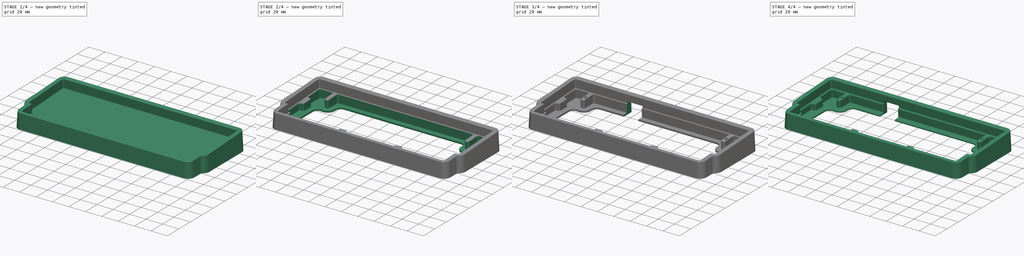
[diagram: build sequence overview — one tinted view per stage of 4, left to right]
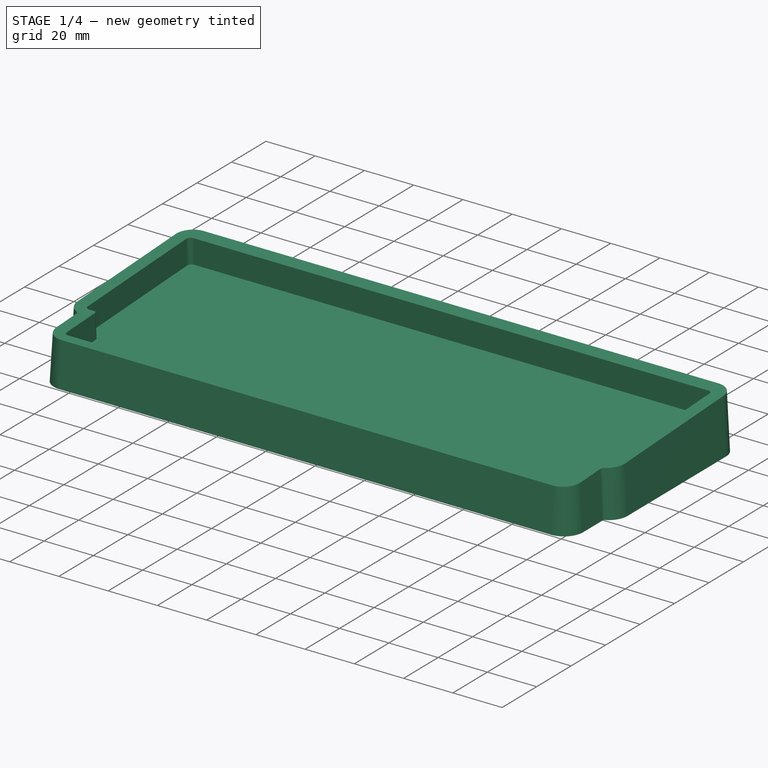
[diagram: stage 1 of 4 — iso view after this stage's code; geometry added in this stage tinted green]
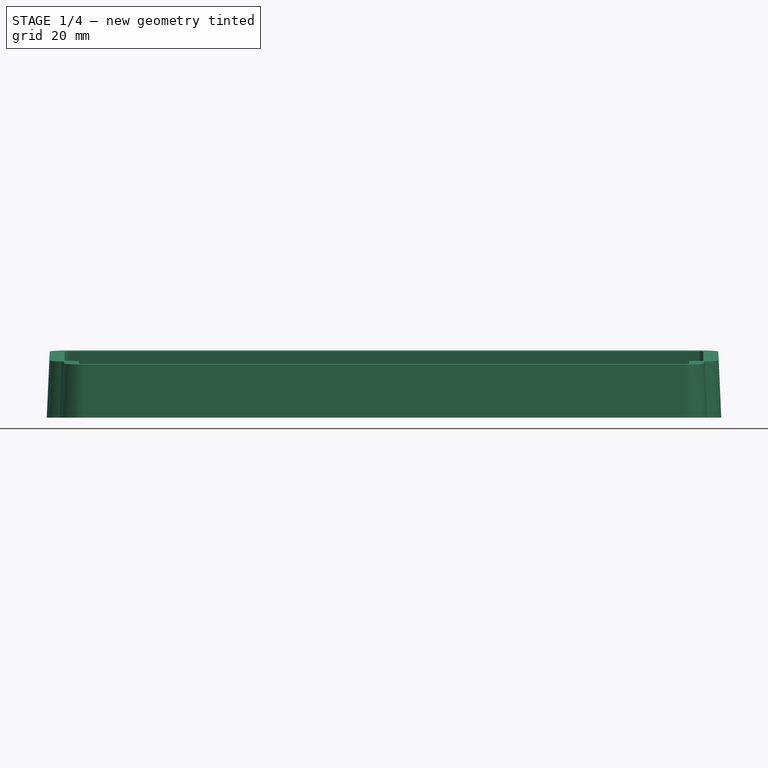
[diagram: stage 1 of 4 — front view after this stage's code; geometry added in this stage tinted green]
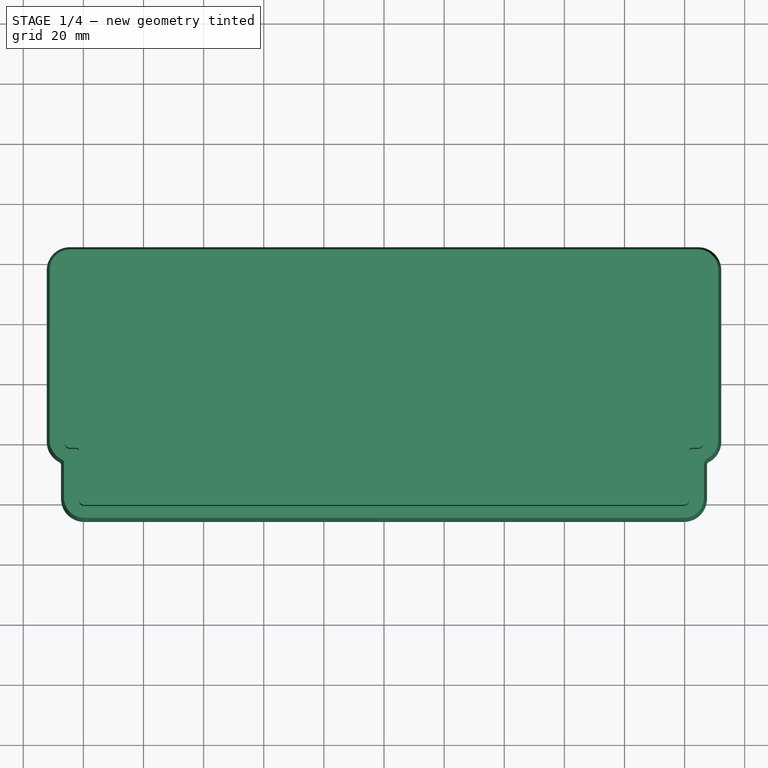
[diagram: stage 1 of 4 — top view after this stage's code; geometry added in this stage tinted green]
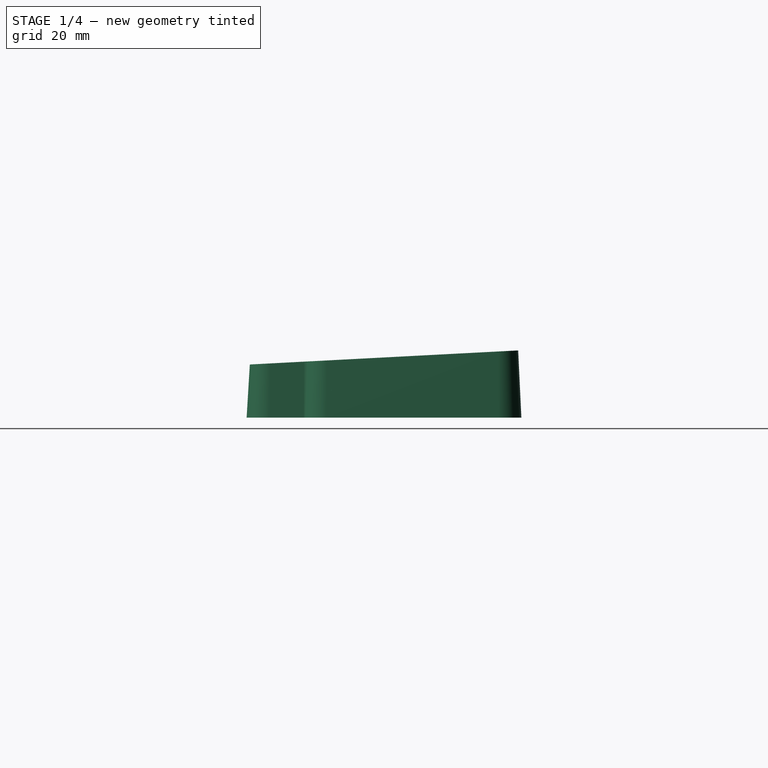
[diagram: stage 1 of 4 — right view after this stage's code; geometry added in this stage tinted green]
FCSTD DOCUMENT  (FreeCAD 0.20R)
Label: case
License: All rights reserved
LicenseURL: http://en.wikipedia.org/wiki/All_rights_reserved
objects: Sketcher::SketchObject×7, PartDesign::Pocket×4, PartDesign::Fillet×2, PartDesign::AdditiveLoft×1, PartDesign::Hole×1, PartDesign::Chamfer×1, PartDesign::Body×1
note: 26 computed .brp shape members not serialized (recipe doc carries the construction recipe); baked Part::Feature solids carry a one-line shape summary decoded from their .brp

FEATURE [Sketcher::SketchObject] Sketch
  FullyConstrained = false
  MapMode = 5
  Support = -> [XY_Plane]
  sketch-geometry (14):
    g0: ArcOfCircle CenterX=108.45 CenterY=-26.7516 CenterZ=0 NormalX=0 NormalY=0 NormalZ=1 AngleXU=0 Radius=1 StartAngle=2.04207 EndAngle=3.14159
    g1: ArcOfCircle CenterX=104.5 CenterY=-19 CenterZ=0 NormalX=0 NormalY=0 NormalZ=1 AngleXU=0 Radius=7.7 StartAngle=5.18366 EndAngle=6.28319
    g2: LineSegment StartX=107.45 StartY=-26.7516 StartZ=0 EndX=107.45 EndY=-38 EndZ=0
    g3: ArcOfCircle CenterX=99.75 CenterY=-38 CenterZ=0 NormalX=0 NormalY=0 NormalZ=1 AngleXU=0 Radius=7.7 StartAngle=4.71239 EndAngle=6.28319
    g4: LineSegment StartX=-99.75 StartY=-45.7 StartZ=0 EndX=99.75 EndY=-45.7 EndZ=0
    g5: LineSegment StartX=112.2 StartY=38 StartZ=0 EndX=112.2 EndY=-19 EndZ=0
    g6: LineSegment StartX=-104.5 StartY=45.7 StartZ=0 EndX=104.5 EndY=45.7 EndZ=0
    g7: ArcOfCircle CenterX=104.5 CenterY=38 CenterZ=0 NormalX=0 NormalY=0 NormalZ=1 AngleXU=0 Radius=7.7 StartAngle=0 EndAngle=1.5708
    g8: LineSegment StartX=-112.2 StartY=38 StartZ=0 EndX=-112.2 EndY=-19 EndZ=0
    g9: ArcOfCircle CenterX=-104.5 CenterY=38 CenterZ=0 NormalX=0 NormalY=0 NormalZ=1 AngleXU=0 Radius=7.7 StartAngle=1.5708 EndAngle=3.14159
    g10: ArcOfCircle CenterX=-104.5 CenterY=-19 CenterZ=0 NormalX=0 NormalY=0 NormalZ=1 AngleXU=0 Radius=7.7 StartAngle=3.14159 EndAngle=4.24111
    g11: LineSegment StartX=-107.45 StartY=-26.7516 StartZ=0 EndX=-107.45 EndY=-38 EndZ=0
    g12: ArcOfCircle CenterX=-108.45 CenterY=-26.7516 CenterZ=0 NormalX=0 NormalY=0 NormalZ=1 AngleXU=0 Radius=1 StartAngle=0 EndAngle=1.09952
    g13: ArcOfCircle CenterX=-99.75 CenterY=-38 CenterZ=0 NormalX=0 NormalY=0 NormalZ=1 AngleXU=0 Radius=7.7 StartAngle=3.14159 EndAngle=4.71239
  constraints (14):
    c: Coincident(g8,g10)
    c: Coincident(g8,g9)
    c: Coincident(g10,g12)
    c: Coincident(g11,g13)
    c: Coincident(g11,g12)
    c: Coincident(g6,g9)
    c: Coincident(g4,g13)
    c: Coincident(g3,g4)
    c: Coincident(g6,g7)
    c: Coincident(g2,g3)
    c: Coincident(g0,g2)
    c: Coincident(g0,g1)
    c: Coincident(g1,g5)
    c: Coincident(g5,g7)
FEATURE [Sketcher::SketchObject] Sketch001
  AttachmentOffset = pos=(0,0,20) rot=(1,0,0;0.05236rad)
  FullyConstrained = false
  MapMode = 5
  Placement = pos=(0,0,20) rot=(1,0,0;0.05236rad)
  Support = -> [XY_Plane]
  sketch-geometry (14):
    g0: ArcOfCircle CenterX=104.5 CenterY=38 CenterZ=0 NormalX=0 NormalY=0 NormalZ=1 AngleXU=0 Radius=6.7 StartAngle=0 EndAngle=1.5708
    g1: LineSegment StartX=111.2 StartY=38 StartZ=0 EndX=111.2 EndY=-19 EndZ=0
    g2: LineSegment StartX=-104.5 StartY=44.7 StartZ=0 EndX=104.5 EndY=44.7 EndZ=0
    g3: ArcOfCircle CenterX=99.75 CenterY=-38 CenterZ=0 NormalX=0 NormalY=0 NormalZ=1 AngleXU=0 Radius=6.7 StartAngle=4.71239 EndAngle=6.28319
    g4: LineSegment StartX=-99.75 StartY=-44.7 StartZ=0 EndX=99.75 EndY=-44.7 EndZ=0
    g5: ArcOfCircle CenterX=-99.75 CenterY=-38 CenterZ=0 NormalX=0 NormalY=0 NormalZ=1 AngleXU=0 Radius=6.7 StartAngle=3.14159 EndAngle=4.71239
    g6: LineSegment StartX=-111.2 StartY=38 StartZ=0 EndX=-111.2 EndY=-19 EndZ=0
    g7: ArcOfCircle CenterX=-104.5 CenterY=38 CenterZ=0 NormalX=0 NormalY=0 NormalZ=1 AngleXU=0 Radius=6.7 StartAngle=1.5708 EndAngle=3.14159
    g8: ArcOfCircle CenterX=-104.5 CenterY=-19 CenterZ=0 NormalX=0 NormalY=0 NormalZ=1 AngleXU=0 Radius=6.7 StartAngle=3.14159 EndAngle=4.24111
    g9: LineSegment StartX=-106.45 StartY=-26.7516 StartZ=0 EndX=-106.45 EndY=-38 EndZ=0
    g10: ArcOfCircle CenterX=-108.45 CenterY=-26.7516 CenterZ=0 NormalX=0 NormalY=0 NormalZ=1 AngleXU=0 Radius=2 StartAngle=0 EndAngle=1.09952
    g11: LineSegment StartX=106.45 StartY=-26.7516 StartZ=0 EndX=106.45 EndY=-38 EndZ=0
    g12: ArcOfCircle CenterX=104.5 CenterY=-19 CenterZ=0 NormalX=0 NormalY=0 NormalZ=1 AngleXU=0 Radius=6.7 StartAngle=5.18366 EndAngle=6.28319
    g13: ArcOfCircle CenterX=108.45 CenterY=-26.7516 CenterZ=0 NormalX=0 NormalY=0 NormalZ=1 AngleXU=0 Radius=2 StartAngle=2.04207 EndAngle=3.14159
  constraints (14):
    c: Coincident(g6,g8)
    c: Coincident(g6,g7)
    c: Coincident(g8,g10)
    c: Coincident(g5,g9)
    c: Coincident(g9,g10)
    c: Coincident(g2,g7)
    c: Coincident(g4,g5)
    c: Coincident(g3,g4)
    c: Coincident(g0,g2)
    c: Coincident(g3,g11)
    c: Coincident(g11,g13)
    c: Coincident(g12,g13)
    c: Coincident(g1,g12)
    c: Coincident(g0,g1)
FEATURE [PartDesign::AdditiveLoft] AdditiveLoft
  Closed = true
  Profile = -> Sketch
  Ruled = true
  Sections = -> [Sketch001]
FEATURE [Sketcher::SketchObject] Sketch002
  FullyConstrained = false
  MapMode = 5
  Placement = pos=(0,-1.04528,19.9452) rot=(1,0,0;0.05236rad)
  Support = -> [AdditiveLoft]
  sketch-geometry (16):
    g0: LineSegment StartX=-104.5 StartY=39.7 StartZ=0 EndX=104.5 EndY=39.7 EndZ=0
    g1: ArcOfCircle CenterX=104.5 CenterY=38 CenterZ=0 NormalX=0 NormalY=0 NormalZ=1 AngleXU=0 Radius=1.7 StartAngle=0 EndAngle=1.5708
    g2: LineSegment StartX=106.2 StartY=38 StartZ=0 EndX=106.2 EndY=-19 EndZ=0
    g3: ArcOfCircle CenterX=104.5 CenterY=-19 CenterZ=0 NormalX=0 NormalY=0 NormalZ=1 AngleXU=0 Radius=1.7 StartAngle=4.71239 EndAngle=6.28319
    g4: ArcOfCircle CenterX=99.75 CenterY=-38 CenterZ=0 NormalX=0 NormalY=0 NormalZ=1 AngleXU=0 Radius=1.7 StartAngle=4.71239 EndAngle=6.28319
    g5: LineSegment StartX=-99.75 StartY=-39.7 StartZ=0 EndX=99.75 EndY=-39.7 EndZ=0
    g6: ArcOfCircle CenterX=-99.75 CenterY=-38 CenterZ=0 NormalX=0 NormalY=0 NormalZ=1 AngleXU=0 Radius=1.7 StartAngle=3.14159 EndAngle=4.71239
    g7: ArcOfCircle CenterX=-104.5 CenterY=-19 CenterZ=0 NormalX=0 NormalY=0 NormalZ=1 AngleXU=0 Radius=1.7 StartAngle=3.14159 EndAngle=4.71239
    g8: LineSegment StartX=-106.2 StartY=38 StartZ=0 EndX=-106.2 EndY=-19 EndZ=0
    g9: ArcOfCircle CenterX=-104.5 CenterY=38 CenterZ=0 NormalX=0 NormalY=0 NormalZ=1 AngleXU=0 Radius=1.7 StartAngle=1.5708 EndAngle=3.14159
    g10: LineSegment StartX=-104.5 StartY=-20.7 StartZ=0 EndX=-102.45 EndY=-20.7 EndZ=0
    g11: LineSegment StartX=-101.45 StartY=-21.7 StartZ=0 EndX=-101.45 EndY=-38 EndZ=0
    g12: ArcOfCircle CenterX=-102.45 CenterY=-21.7 CenterZ=0 NormalX=0 NormalY=0 NormalZ=1 AngleXU=0 Radius=1 StartAngle=0 EndAngle=1.5708
    g13: LineSegment StartX=101.45 StartY=-21.7 StartZ=0 EndX=101.45 EndY=-38 EndZ=0
    g14: LineSegment StartX=102.45 StartY=-20.7 StartZ=0 EndX=104.5 EndY=-20.7 EndZ=0
    g15: ArcOfCircle CenterX=102.45 CenterY=-21.7 CenterZ=0 NormalX=0 NormalY=0 NormalZ=1 AngleXU=0 Radius=1 StartAngle=1.5708 EndAngle=3.14159
  constraints (16):
    c: Coincident(g7,g8)
    c: Coincident(g8,g9)
    c: Coincident(g7,g10)
    c: Coincident(g0,g9)
    c: Coincident(g10,g12)
    c: Coincident(g6,g11)
    c: Coincident(g11,g12)
    c: Coincident(g5,g6)
    c: Coincident(g4,g5)
    c: Coincident(g4,g13)
    c: Coincident(g13,g15)
    c: Coincident(g14,g15)
    c: Coincident(g3,g14)
    c: Coincident(g0,g1)
    c: Coincident(g2,g3)
    c: Coincident(g1,g2)
FEATURE [PartDesign::Pocket] Pocket
  BaseFeature = -> AdditiveLoft
  Direction = (0,0.052336,-0.99863)
  Length = 10
  Length2 = 5
  Profile = -> Sketch002
  ReferenceAxis = -> Sketch002 [N_Axis]
  Type = 0
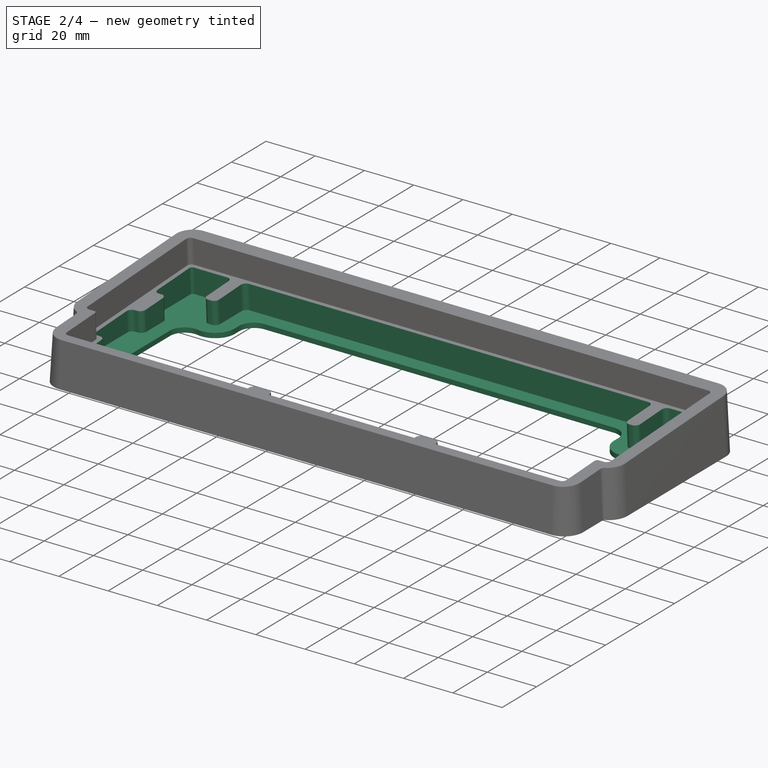
[diagram: stage 2 of 4 — iso view after this stage's code; geometry added in this stage tinted green]
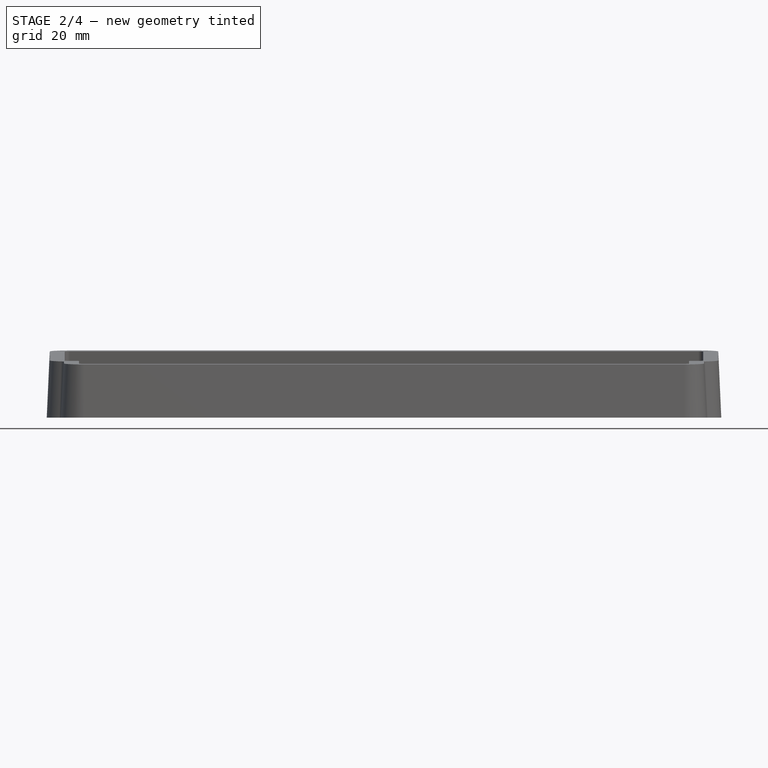
[diagram: stage 2 of 4 — front view after this stage's code; geometry added in this stage tinted green]
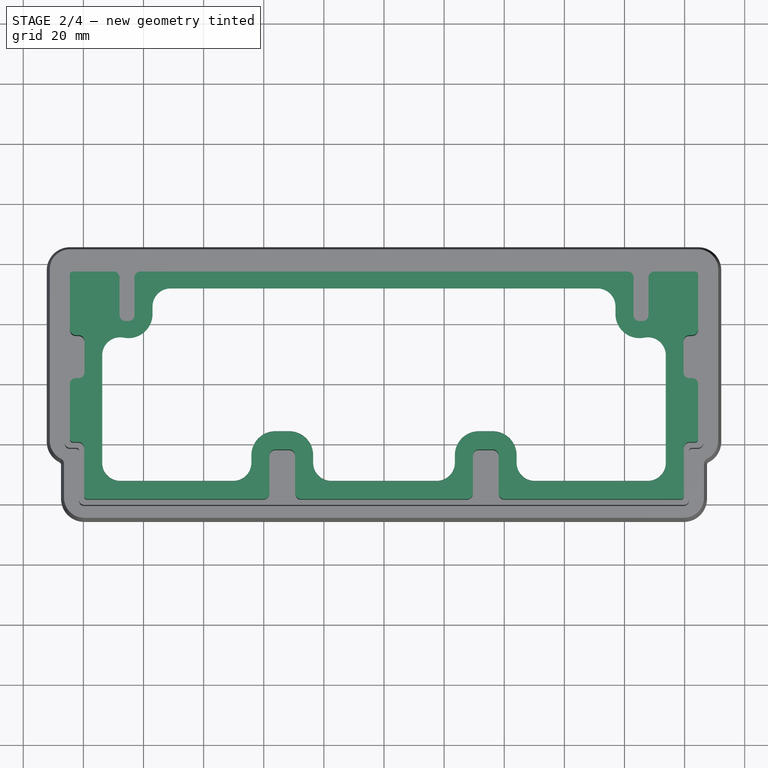
[diagram: stage 2 of 4 — top view after this stage's code; geometry added in this stage tinted green]
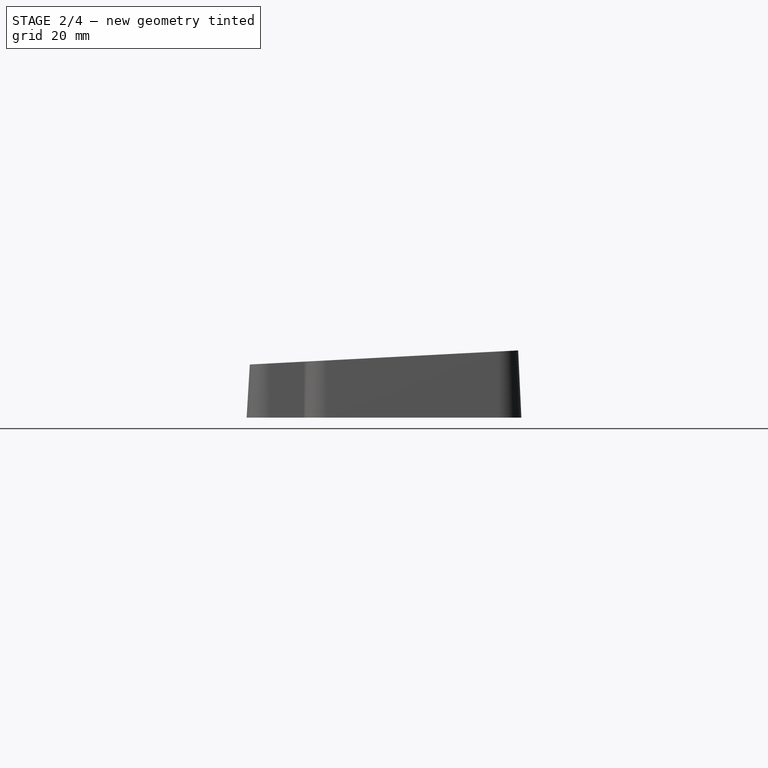
[diagram: stage 2 of 4 — right view after this stage's code; geometry added in this stage tinted green]
FEATURE [Sketcher::SketchObject] Sketch003
  FullyConstrained = false
  MapMode = 5
  Placement = pos=(0,-0.521925,9.95892) rot=(1,0,0;0.05236rad)
  Support = -> [Pocket]
  sketch-geometry (64):
    g0: ArcOfCircle CenterX=-101.75 CenterY=-21 CenterZ=0 NormalX=0 NormalY=0 NormalZ=1 AngleXU=0 Radius=2 StartAngle=0 EndAngle=1.5708
    g1: ArcOfCircle CenterX=101.75 CenterY=-21 CenterZ=0 NormalX=0 NormalY=0 NormalZ=1 AngleXU=0 Radius=2 StartAngle=1.5708 EndAngle=3.14159
    g2: ArcOfCircle CenterX=103.5 CenterY=37 CenterZ=0 NormalX=0 NormalY=0 NormalZ=1 AngleXU=0 Radius=1 StartAngle=0 EndAngle=1.5708
    g3: LineSegment StartX=101.75 StartY=-19 StartZ=0 EndX=103.5 EndY=-19 EndZ=0
    g4: ArcOfCircle CenterX=103.5 CenterY=-18 CenterZ=0 NormalX=0 NormalY=0 NormalZ=1 AngleXU=0 Radius=1 StartAngle=4.71239 EndAngle=6.28319
    g5: LineSegment StartX=99.75 StartY=-21 StartZ=0 EndX=99.75 EndY=-37 EndZ=0
    g6: ArcOfCircle CenterX=98.75 CenterY=-37 CenterZ=0 NormalX=0 NormalY=0 NormalZ=1 AngleXU=0 Radius=1 StartAngle=4.71239 EndAngle=6.28319
    g7: LineSegment StartX=-99.75 StartY=-21 StartZ=0 EndX=-99.75 EndY=-37 EndZ=0
    g8: ArcOfCircle CenterX=-98.75 CenterY=-37 CenterZ=0 NormalX=0 NormalY=0 NormalZ=1 AngleXU=0 Radius=1 StartAngle=3.14159 EndAngle=4.71239
    g9: LineSegment StartX=-103.5 StartY=-19 StartZ=0 EndX=-101.75 EndY=-19 EndZ=0
    g10: ArcOfCircle CenterX=-103.5 CenterY=-18 CenterZ=0 NormalX=0 NormalY=0 NormalZ=1 AngleXU=0 Radius=1 StartAngle=3.14159 EndAngle=4.71239
    g11: ArcOfCircle CenterX=-103.5 CenterY=37 CenterZ=0 NormalX=0 NormalY=0 NormalZ=1 AngleXU=0 Radius=1 StartAngle=1.5708 EndAngle=3.14159
    g12: LineSegment StartX=-103.5 StartY=38 StartZ=0 EndX=-90 EndY=38 EndZ=0
    g13: ArcOfCircle CenterX=-90 CenterY=36 CenterZ=0 NormalX=0 NormalY=0 NormalZ=1 AngleXU=0 Radius=2 StartAngle=0 EndAngle=1.5708
    g14: ArcOfCircle CenterX=-81 CenterY=36 CenterZ=0 NormalX=0 NormalY=0 NormalZ=1 AngleXU=0 Radius=2 StartAngle=1.5708 EndAngle=3.14159
    g15: LineSegment StartX=-88 StartY=23.5 StartZ=0 EndX=-88 EndY=36 EndZ=0
    g16: ArcOfCircle CenterX=-86 CenterY=23.5 CenterZ=0 NormalX=0 NormalY=0 NormalZ=1 AngleXU=0 Radius=2 StartAngle=3.14159 EndAngle=4.71239
    g17: LineSegment StartX=-83 StartY=36 StartZ=0 EndX=-83 EndY=23.5 EndZ=0
    g18: LineSegment StartX=-86 StartY=21.5 StartZ=0 EndX=-85 EndY=21.5 EndZ=0
    g19: ArcOfCircle CenterX=-85 CenterY=23.5 CenterZ=0 NormalX=0 NormalY=0 NormalZ=1 AngleXU=0 Radius=2 StartAngle=4.71239 EndAngle=6.28319
    g20: LineSegment StartX=-81 StartY=38 StartZ=0 EndX=81 EndY=38 EndZ=0
    g21: ArcOfCircle CenterX=81 CenterY=36 CenterZ=0 NormalX=0 NormalY=0 NormalZ=1 AngleXU=0 Radius=2 StartAngle=0 EndAngle=1.5708
    g22: LineSegment StartX=90 StartY=38 StartZ=0 EndX=103.5 EndY=38 EndZ=0
    g23: ArcOfCircle CenterX=90 CenterY=36 CenterZ=0 NormalX=0 NormalY=0 NormalZ=1 AngleXU=0 Radius=2 StartAngle=1.5708 EndAngle=3.14159
    g24: LineSegment StartX=83 StartY=36 StartZ=0 EndX=83 EndY=23.5 EndZ=0
    g25: ArcOfCircle CenterX=85 CenterY=23.5 CenterZ=0 NormalX=0 NormalY=0 NormalZ=1 AngleXU=0 Radius=2 StartAngle=3.14159 EndAngle=4.71239
    g26: LineSegment StartX=88 StartY=23.5 StartZ=0 EndX=88 EndY=36 EndZ=0
    g27: LineSegment StartX=85 StartY=21.5 StartZ=0 EndX=86 EndY=21.5 EndZ=0
    g28: ArcOfCircle CenterX=86 CenterY=23.5 CenterZ=0 NormalX=0 NormalY=0 NormalZ=1 AngleXU=0 Radius=2 StartAngle=4.71239 EndAngle=6.28319
    g29: ArcOfCircle CenterX=31.5625 CenterY=-23.5 CenterZ=0 NormalX=0 NormalY=0 NormalZ=1 AngleXU=0 Radius=2 StartAngle=1.5708 EndAngle=3.14159
    g30: LineSegment StartX=31.5625 StartY=-21.5 StartZ=0 EndX=36.125 EndY=-21.5 EndZ=0
    g31: ArcOfCircle CenterX=36.125 CenterY=-23.5 CenterZ=0 NormalX=0 NormalY=0 NormalZ=1 AngleXU=0 Radius=2 StartAngle=0 EndAngle=1.5708
    g32: LineSegment StartX=29.5625 StartY=-36 StartZ=0 EndX=29.5625 EndY=-23.5 EndZ=0
    g33: ArcOfCircle CenterX=27.5625 CenterY=-36 CenterZ=0 NormalX=0 NormalY=0 NormalZ=1 AngleXU=0 Radius=2 StartAngle=4.71239 EndAngle=6.28319
    g34: LineSegment StartX=38.125 StartY=-36 StartZ=0 EndX=38.125 EndY=-23.5 EndZ=0
    g35: LineSegment StartX=40.125 StartY=-38 StartZ=0 EndX=98.75 EndY=-38 EndZ=0
    g36: ArcOfCircle CenterX=40.125 CenterY=-36 CenterZ=0 NormalX=0 NormalY=0 NormalZ=1 AngleXU=0 Radius=2 StartAngle=3.14159 EndAngle=4.71239
    g37: ArcOfCircle CenterX=-31.5625 CenterY=-23.5 CenterZ=0 NormalX=0 NormalY=0 NormalZ=1 AngleXU=0 Radius=2 StartAngle=0 EndAngle=1.5708
    g38: LineSegment StartX=-31.5625 StartY=-21.5 StartZ=0 EndX=-36.125 EndY=-21.5 EndZ=0
    g39: ArcOfCircle CenterX=-36.125 CenterY=-23.5 CenterZ=0 NormalX=0 NormalY=0 NormalZ=1 AngleXU=0 Radius=2 StartAngle=1.5708 EndAngle=3.14159
    g40: LineSegment StartX=-29.5625 StartY=-36 StartZ=0 EndX=-29.5625 EndY=-23.5 EndZ=0
    g41: ArcOfCircle CenterX=-27.5625 CenterY=-36 CenterZ=0 NormalX=0 NormalY=0 NormalZ=1 AngleXU=0 Radius=2 StartAngle=3.14159 EndAngle=4.71239
    g42: LineSegment StartX=-38.125 StartY=-36 StartZ=0 EndX=-38.125 EndY=-23.5 EndZ=0
    g43: ArcOfCircle CenterX=-40.125 CenterY=-36 CenterZ=0 NormalX=0 NormalY=0 NormalZ=1 AngleXU=0 Radius=2 StartAngle=4.71239 EndAngle=6.28319
    g44: LineSegment StartX=-98.75 StartY=-38 StartZ=0 EndX=-40.125 EndY=-38 EndZ=0
    g45: LineSegment StartX=-27.5625 StartY=-38 StartZ=0 EndX=27.5625 EndY=-38 EndZ=0
    g46: ArcOfCircle CenterX=-101.625 CenterY=14.5 CenterZ=0 NormalX=0 NormalY=0 NormalZ=1 AngleXU=0 Radius=2 StartAngle=0 EndAngle=1.5708
    g47: LineSegment StartX=-102.5 StartY=16.5 StartZ=0 EndX=-101.625 EndY=16.5 EndZ=0
    g48: LineSegment StartX=-104.5 StartY=37 StartZ=0 EndX=-104.5 EndY=18.5 EndZ=0
    g49: ArcOfCircle CenterX=-102.5 CenterY=18.5 CenterZ=0 NormalX=0 NormalY=0 NormalZ=1 AngleXU=0 Radius=2 StartAngle=3.14159 EndAngle=4.71239
    g50: LineSegment StartX=-99.625 StartY=14.5 StartZ=0 EndX=-99.625 EndY=4.5 EndZ=0
    g51: ArcOfCircle CenterX=-101.625 CenterY=4.5 CenterZ=0 NormalX=0 NormalY=0 NormalZ=1 AngleXU=0 Radius=2 StartAngle=4.71239 EndAngle=6.28319
    g52: LineSegment StartX=-102.5 StartY=2.5 StartZ=0 EndX=-101.625 EndY=2.5 EndZ=0
    g53: LineSegment StartX=-104.5 StartY=0.5 StartZ=0 EndX=-104.5 EndY=-18 EndZ=0
    g54: ArcOfCircle CenterX=-102.5 CenterY=0.5 CenterZ=0 NormalX=0 NormalY=0 NormalZ=1 AngleXU=0 Radius=2 StartAngle=1.5708 EndAngle=3.14159
    g55: ArcOfCircle CenterX=101.625 CenterY=14.5 CenterZ=0 NormalX=0 NormalY=0 NormalZ=1 AngleXU=0 Radius=2 StartAngle=1.5708 EndAngle=3.14159
    g56: LineSegment StartX=102.5 StartY=16.5 StartZ=0 EndX=101.625 EndY=16.5 EndZ=0
    g57: ArcOfCircle CenterX=102.5 CenterY=18.5 CenterZ=0 NormalX=0 NormalY=0 NormalZ=1 AngleXU=0 Radius=2 StartAngle=4.71239 EndAngle=6.28319
    g58: LineSegment StartX=99.625 StartY=14.5 StartZ=0 EndX=99.625 EndY=4.5 EndZ=0
    g59: ArcOfCircle CenterX=101.625 CenterY=4.5 CenterZ=0 NormalX=0 NormalY=0 NormalZ=1 AngleXU=0 Radius=2 StartAngle=3.14159 EndAngle=4.71239
    g60: LineSegment StartX=102.5 StartY=2.5 StartZ=0 EndX=101.625 EndY=2.5 EndZ=0
    g61: LineSegment StartX=104.5 StartY=0.5 StartZ=0 EndX=104.5 EndY=-18 EndZ=0
    g62: ArcOfCircle CenterX=102.5 CenterY=0.5 CenterZ=0 NormalX=0 NormalY=0 NormalZ=1 AngleXU=0 Radius=2 StartAngle=0 EndAngle=1.5708
    g63: LineSegment StartX=104.5 StartY=37 StartZ=0 EndX=104.5 EndY=18.5 EndZ=0
  constraints (64):
    c: Coincident(g10,g53)
    c: Coincident(g53,g54)
    c: Coincident(g48,g49)
    c: Coincident(g11,g48)
    c: Coincident(g9,g10)
    c: Coincident(g11,g12)
    c: Coincident(g52,g54)
    c: Coincident(g47,g49)
    c: Coincident(g0,g9)
    c: Coincident(g51,g52)
    c: Coincident(g46,g47)
    c: Coincident(g7,g8)
    c: Coincident(g0,g7)
    c: Coincident(g50,g51)
    c: Coincident(g46,g50)
    c: Coincident(g8,g44)
    c: Coincident(g12,g13)
    c: Coincident(g15,g16)
    c: Coincident(g13,g15)
    c: Coincident(g16,g18)
    c: Coincident(g18,g19)
    c: Coincident(g17,g19)
    c: Coincident(g14,g17)
    c: Coincident(g14,g20)
    c: Coincident(g43,g44)
    c: Coincident(g42,g43)
    c: Coincident(g39,g42)
    c: Coincident(g38,g39)
    c: Coincident(g37,g38)
    c: Coincident(g40,g41)
    c: Coincident(g37,g40)
    c: Coincident(g41,g45)
    c: Coincident(g33,g45)
    c: Coincident(g32,g33)
    c: Coincident(g29,g32)
    c: Coincident(g29,g30)
    c: Coincident(g30,g31)
    c: Coincident(g34,g36)
    c: Coincident(g31,g34)
    c: Coincident(g35,g36)
    c: Coincident(g20,g21)
    c: Coincident(g24,g25)
    c: Coincident(g21,g24)
    c: Coincident(g25,g27)
    c: Coincident(g27,g28)
    c: Coincident(g26,g28)
    c: Coincident(g23,g26)
    c: Coincident(g22,g23)
    c: Coincident(g6,g35)
    c: Coincident(g58,g59)
    c: Coincident(g55,g58)
    c: Coincident(g5,g6)
    c: Coincident(g1,g5)
    c: Coincident(g59,g60)
    c: Coincident(g55,g56)
    c: Coincident(g1,g3)
    c: Coincident(g60,g62)
    c: Coincident(g56,g57)
    c: Coincident(g3,g4)
    c: Coincident(g2,g22)
    c: Coincident(g4,g61)
    c: Coincident(g61,g62)
    c: Coincident(g57,g63)
    c: Coincident(g2,g63)
FEATURE [PartDesign::Pocket] Pocket001
  BaseFeature = -> Pocket
  Direction = (0,0.052336,-0.99863)
  Length = 0
  Length2 = 5
  Offset = -2
  Profile = -> Sketch003
  ReferenceAxis = -> Sketch003 [N_Axis]
  Type = 3
  UpToFace = -> Pocket [Face1]
FEATURE [Sketcher::SketchObject] Sketch004
  FullyConstrained = false
  MapMode = 5
  Placement = pos=(0,-0.521925,9.95892) rot=(1,0,0;0.05236rad)
  Support = -> [Pocket]
  sketch-geometry (30):
    g0: ArcOfCircle CenterX=-31.5625 CenterY=-23.5 CenterZ=0 NormalX=0 NormalY=0 NormalZ=1 AngleXU=0 Radius=8 StartAngle=0 EndAngle=1.5708
    g1: LineSegment StartX=-31.5625 StartY=-15.5 StartZ=0 EndX=-36.125 EndY=-15.5 EndZ=0
    g2: ArcOfCircle CenterX=-36.125 CenterY=-23.5 CenterZ=0 NormalX=0 NormalY=0 NormalZ=1 AngleXU=0 Radius=8 StartAngle=1.5708 EndAngle=3.14159
    g3: ArcOfCircle CenterX=36.125 CenterY=-23.5 CenterZ=0 NormalX=0 NormalY=0 NormalZ=1 AngleXU=0 Radius=8 StartAngle=0 EndAngle=1.5708
    g4: LineSegment StartX=31.5625 StartY=-15.5 StartZ=0 EndX=36.125 EndY=-15.5 EndZ=0
    g5: ArcOfCircle CenterX=31.5625 CenterY=-23.5 CenterZ=0 NormalX=0 NormalY=0 NormalZ=1 AngleXU=0 Radius=8 StartAngle=1.5708 EndAngle=3.14159
    g6: ArcOfCircle CenterX=-85 CenterY=23.5 CenterZ=0 NormalX=0 NormalY=0 NormalZ=1 AngleXU=0 Radius=8 StartAngle=4.51467 EndAngle=6.28319
    g7: ArcOfCircle CenterX=-87.75 CenterY=9.77275 CenterZ=0 NormalX=0 NormalY=0 NormalZ=1 AngleXU=0 Radius=6 StartAngle=1.37308 EndAngle=3.14159
    g8: LineSegment StartX=-77 StartY=26 StartZ=0 EndX=-77 EndY=23.5 EndZ=0
    g9: ArcOfCircle CenterX=-71 CenterY=26 CenterZ=0 NormalX=0 NormalY=0 NormalZ=1 AngleXU=0 Radius=6 StartAngle=1.5708 EndAngle=3.14159
    g10: LineSegment StartX=-93.75 StartY=9.77275 StartZ=0 EndX=-93.75 EndY=-26 EndZ=0
    g11: ArcOfCircle CenterX=-87.75 CenterY=-26 CenterZ=0 NormalX=0 NormalY=0 NormalZ=1 AngleXU=0 Radius=6 StartAngle=3.14159 EndAngle=4.71239
    g12: LineSegment StartX=-87.75 StartY=-32 StartZ=0 EndX=-50.125 EndY=-32 EndZ=0
    g13: LineSegment StartX=-44.125 StartY=-26 StartZ=0 EndX=-44.125 EndY=-23.5 EndZ=0
    g14: ArcOfCircle CenterX=-50.125 CenterY=-26 CenterZ=0 NormalX=0 NormalY=0 NormalZ=1 AngleXU=0 Radius=6 StartAngle=4.71239 EndAngle=6.28319
    g15: LineSegment StartX=-23.5625 StartY=-26 StartZ=0 EndX=-23.5625 EndY=-23.5 EndZ=0
    g16: ArcOfCircle CenterX=-17.5625 CenterY=-26 CenterZ=0 NormalX=0 NormalY=0 NormalZ=1 AngleXU=0 Radius=6 StartAngle=3.14159 EndAngle=4.71239
    g17: LineSegment StartX=-17.5625 StartY=-32 StartZ=0 EndX=17.5625 EndY=-32 EndZ=0
    g18: LineSegment StartX=23.5625 StartY=-26 StartZ=0 EndX=23.5625 EndY=-23.5 EndZ=0
    g19: ArcOfCircle CenterX=17.5625 CenterY=-26 CenterZ=0 NormalX=0 NormalY=0 NormalZ=1 AngleXU=0 Radius=6 StartAngle=4.71239 EndAngle=6.28319
    g20: LineSegment StartX=44.125 StartY=-26 StartZ=0 EndX=44.125 EndY=-23.5 EndZ=0
    g21: ArcOfCircle CenterX=50.125 CenterY=-26 CenterZ=0 NormalX=0 NormalY=0 NormalZ=1 AngleXU=0 Radius=6 StartAngle=3.14159 EndAngle=4.71239
    g22: ArcOfCircle CenterX=85 CenterY=23.5 CenterZ=0 NormalX=0 NormalY=0 NormalZ=1 AngleXU=0 Radius=8 StartAngle=3.14159 EndAngle=4.9101
    g23: ArcOfCircle CenterX=87.75 CenterY=9.77275 CenterZ=0 NormalX=0 NormalY=0 NormalZ=1 AngleXU=0 Radius=6 StartAngle=0 EndAngle=1.76851
    g24: LineSegment StartX=93.75 StartY=-26 StartZ=0 EndX=93.75 EndY=9.77275 EndZ=0
    g25: LineSegment StartX=50.125 StartY=-32 StartZ=0 EndX=87.75 EndY=-32 EndZ=0
    g26: ArcOfCircle CenterX=87.75 CenterY=-26 CenterZ=0 NormalX=0 NormalY=0 NormalZ=1 AngleXU=0 Radius=6 StartAngle=4.71239 EndAngle=6.28319
    g27: LineSegment StartX=-71 StartY=32 StartZ=0 EndX=71 EndY=32 EndZ=0
    g28: LineSegment StartX=77 StartY=26 StartZ=0 EndX=77 EndY=23.5 EndZ=0
    g29: ArcOfCircle CenterX=71 CenterY=26 CenterZ=0 NormalX=0 NormalY=0 NormalZ=1 AngleXU=0 Radius=6 StartAngle=0 EndAngle=1.5708
  constraints (30):
    c: Coincident(g10,g11)
    c: Coincident(g7,g10)
    c: Coincident(g11,g12)
    c: Coincident(g6,g7)
    c: Coincident(g6,g8)
    c: Coincident(g8,g9)
    c: Coincident(g9,g27)
    c: Coincident(g12,g14)
    c: Coincident(g13,g14)
    c: Coincident(g2,g13)
    c: Coincident(g1,g2)
    c: Coincident(g0,g1)
    c: Coincident(g15,g16)
    c: Coincident(g0,g15)
    c: Coincident(g16,g17)
    c: Coincident(g17,g19)
    c: Coincident(g18,g19)
    c: Coincident(g5,g18)
    c: Coincident(g4,g5)
    c: Coincident(g3,g4)
    c: Coincident(g20,g21)
    c: Coincident(g3,g20)
    c: Coincident(g21,g25)
    c: Coincident(g27,g29)
    c: Coincident(g22,g28)
    c: Coincident(g28,g29)
    c: Coincident(g22,g23)
    c: Coincident(g25,g26)
    c: Coincident(g24,g26)
    c: Coincident(g23,g24)
FEATURE [PartDesign::Pocket] Pocket002
  BaseFeature = -> Pocket001
  Direction = (0,0.052336,-0.99863)
  Length = 5
  Length2 = 5
  Profile = -> Sketch004
  ReferenceAxis = -> Sketch004 [N_Axis]
  Type = 1
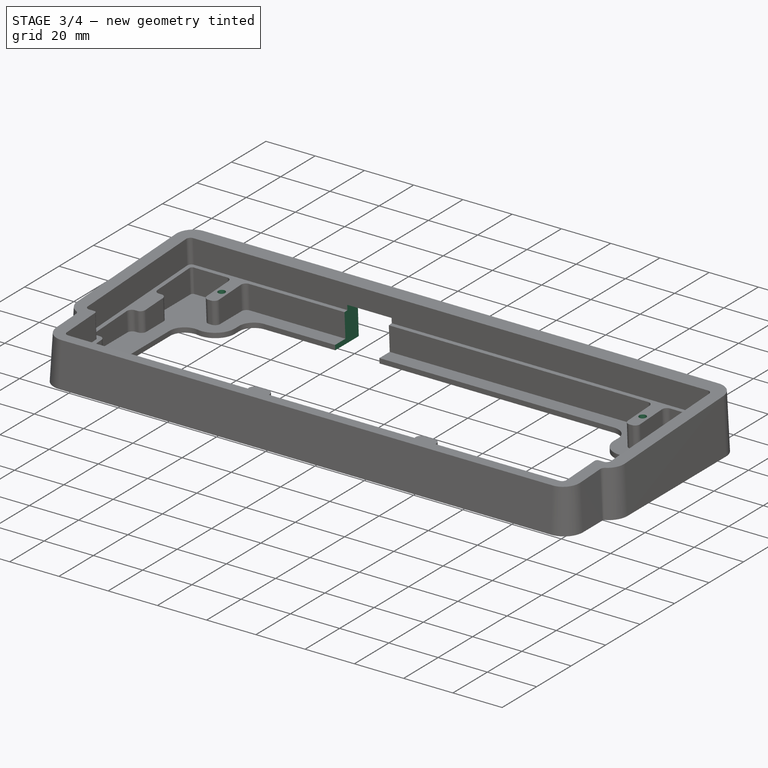
[diagram: stage 3 of 4 — iso view after this stage's code; geometry added in this stage tinted green]
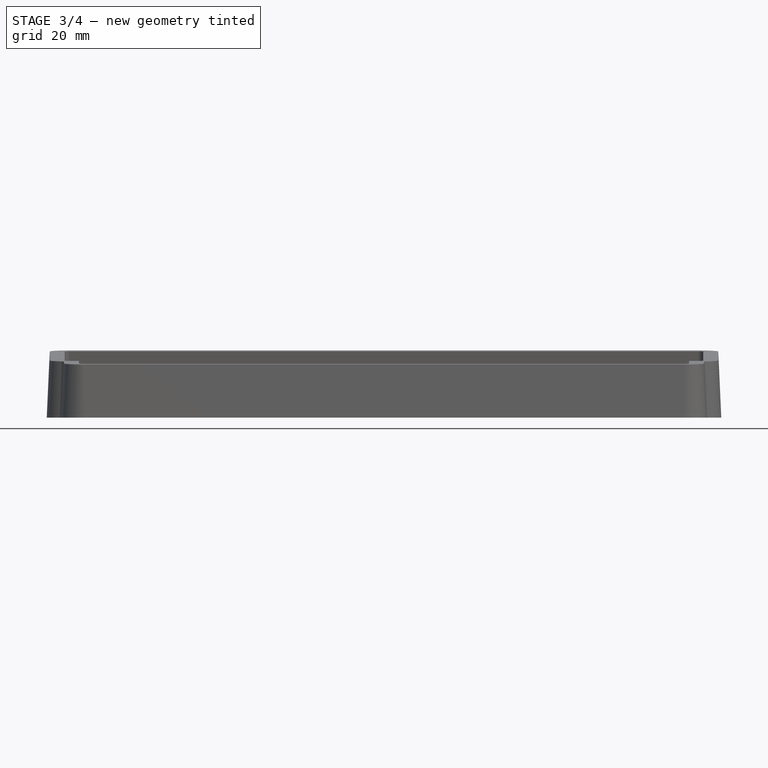
[diagram: stage 3 of 4 — front view after this stage's code; geometry added in this stage tinted green]
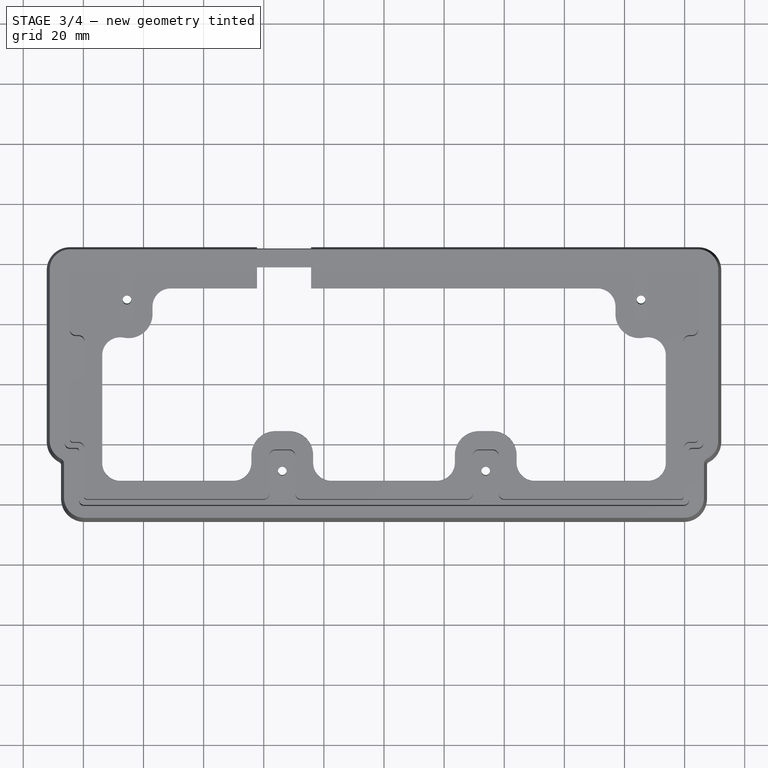
[diagram: stage 3 of 4 — top view after this stage's code; geometry added in this stage tinted green]
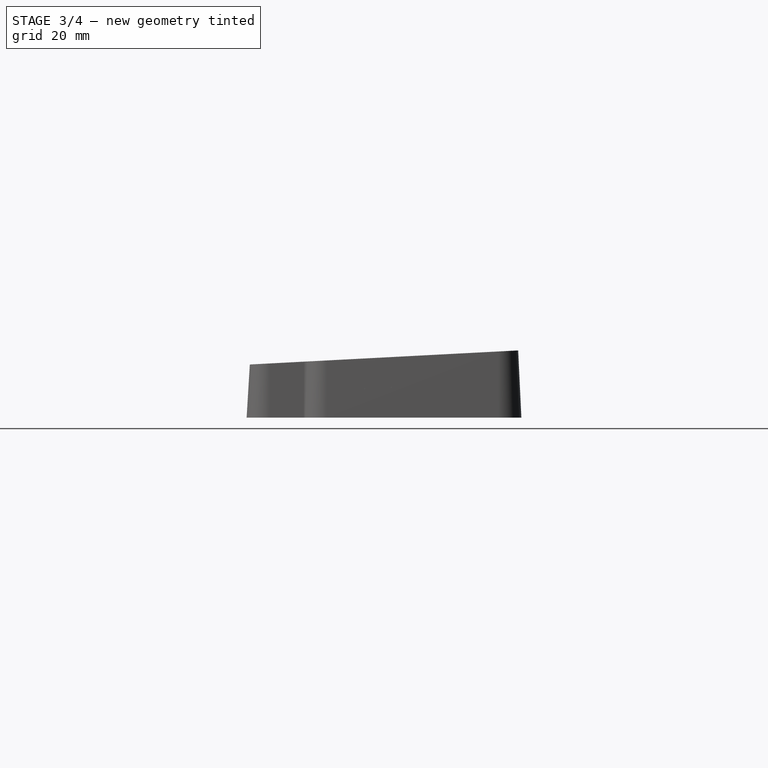
[diagram: stage 3 of 4 — right view after this stage's code; geometry added in this stage tinted green]
FEATURE [Sketcher::SketchObject] Sketch005
  FullyConstrained = false
  MapMode = 5
  Placement = pos=(0,-0.521925,9.95892) rot=(1,0,0;0.05236rad)
  Support = -> [Pocket]
  sketch-geometry (4):
    g0: Circle CenterX=85.5 CenterY=28.5 CenterZ=0 NormalX=0 NormalY=0 NormalZ=-1 AngleXU=0 Radius=1.1
    g1: Circle CenterX=-85.5 CenterY=28.5 CenterZ=0 NormalX=0 NormalY=0 NormalZ=-1 AngleXU=0 Radius=1.1
    g2: Circle CenterX=33.8438 CenterY=-28.5 CenterZ=0 NormalX=0 NormalY=0 NormalZ=-1 AngleXU=0 Radius=1.1
    g3: Circle CenterX=-33.8438 CenterY=-28.5 CenterZ=0 NormalX=0 NormalY=0 NormalZ=-1 AngleXU=0 Radius=1.1
FEATURE [PartDesign::Hole] Hole
  BaseFeature = -> Pocket002
  CustomThreadClearance = 0
  Depth = 491.003
  DepthType = 1
  Diameter = 2.9
  DrillForDepth = false
  DrillPoint = 1
  DrillPointAngle = 118
  HoleCutCountersinkAngle = 90
  HoleCutCustomValues = false
  HoleCutDepth = 0
  HoleCutDiameter = 6.1
  HoleCutType = 0
  ModelThread = false
  Profile = -> Sketch005
  Tapered = false
  TaperedAngle = 90
  ThreadClass = 0
  ThreadDepth = 491.003
  ThreadDepthType = 0
  ThreadDirection = 0
  ThreadFit = 0
  ThreadSize = 8
  ThreadType = 1
  Threaded = false
  UseCustomThreadClearance = false
FEATURE [PartDesign::Chamfer] Chamfer
  Angle = 45
  Base = -> Hole [Edge48,Edge17,Edge15,Edge16]
  BaseFeature = -> Hole
  ChamferType = 0
  FlipDirection = false
  Size = 3
  Size2 = 1
  SupportTransform = false
  UseAllEdges = false
FEATURE [Sketcher::SketchObject] Sketch006
  FullyConstrained = false
  sketch-geometry (4):
    g0: LineSegment StartX=-42.25 StartY=0.5 StartZ=0 EndX=-24.25 EndY=0.5 EndZ=0
    g1: LineSegment StartX=-42.25 StartY=50 StartZ=0 EndX=-42.25 EndY=0.5 EndZ=0
    g2: LineSegment StartX=-24.25 StartY=50 StartZ=0 EndX=-24.25 EndY=0.5 EndZ=0
    g3: LineSegment StartX=-42.25 StartY=50 StartZ=0 EndX=-24.25 EndY=50 EndZ=0
  constraints (4):
    c: Coincident(g0,g1)
    c: Coincident(g1,g3)
    c: Coincident(g0,g2)
    c: Coincident(g2,g3)
FEATURE [PartDesign::Pocket] Pocket003
  BaseFeature = -> Chamfer
  Direction = (0,0,-1)
  Length = 0
  Length2 = 5
  Offset = -2
  Profile = -> Sketch006
  ReferenceAxis = -> Sketch006 [N_Axis]
  Type = 3
  UpToFace = -> Chamfer [Face56]
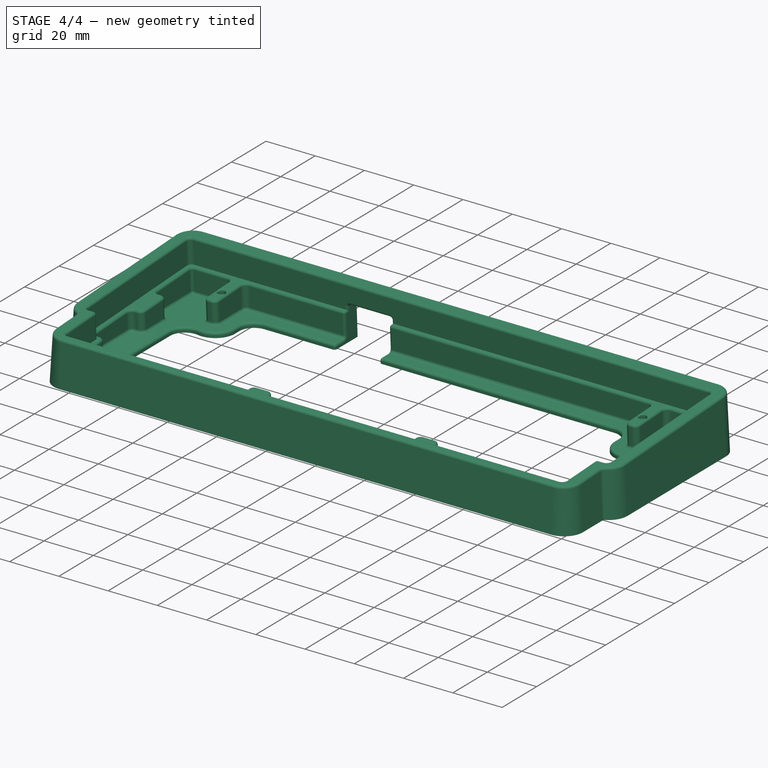
[diagram: stage 4 of 4 — iso view after this stage's code; geometry added in this stage tinted green]
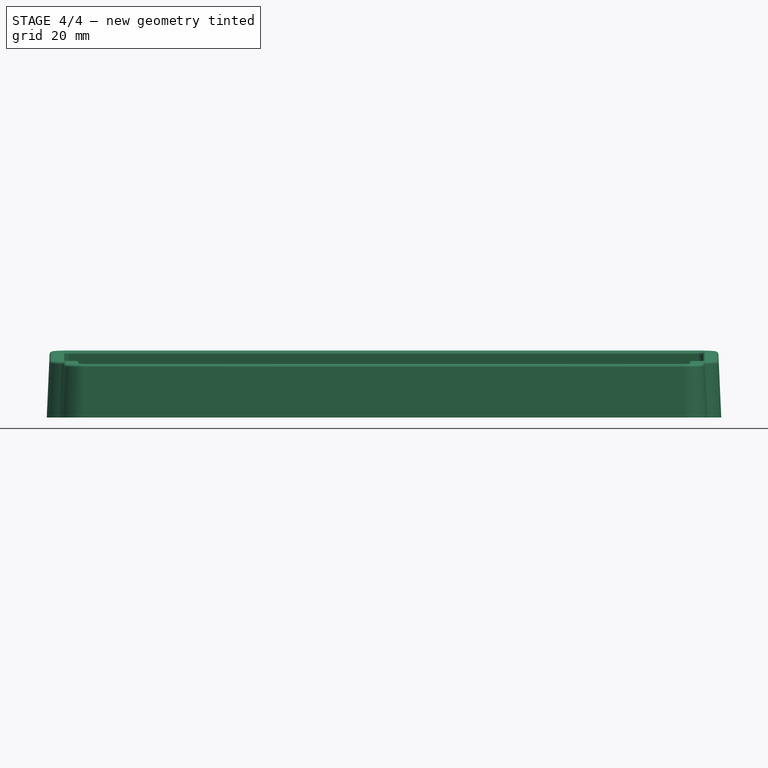
[diagram: stage 4 of 4 — front view after this stage's code; geometry added in this stage tinted green]
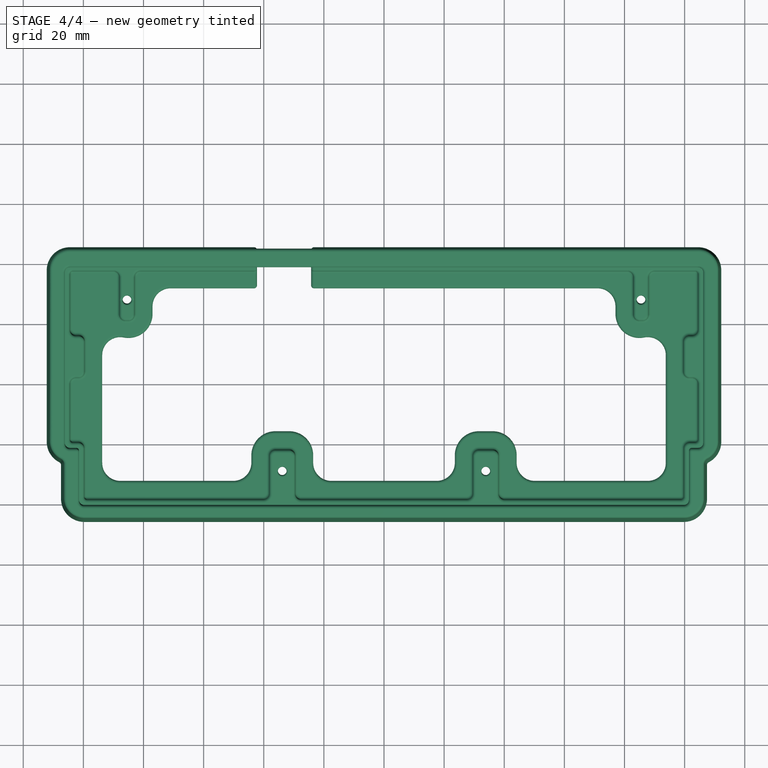
[diagram: stage 4 of 4 — top view after this stage's code; geometry added in this stage tinted green]
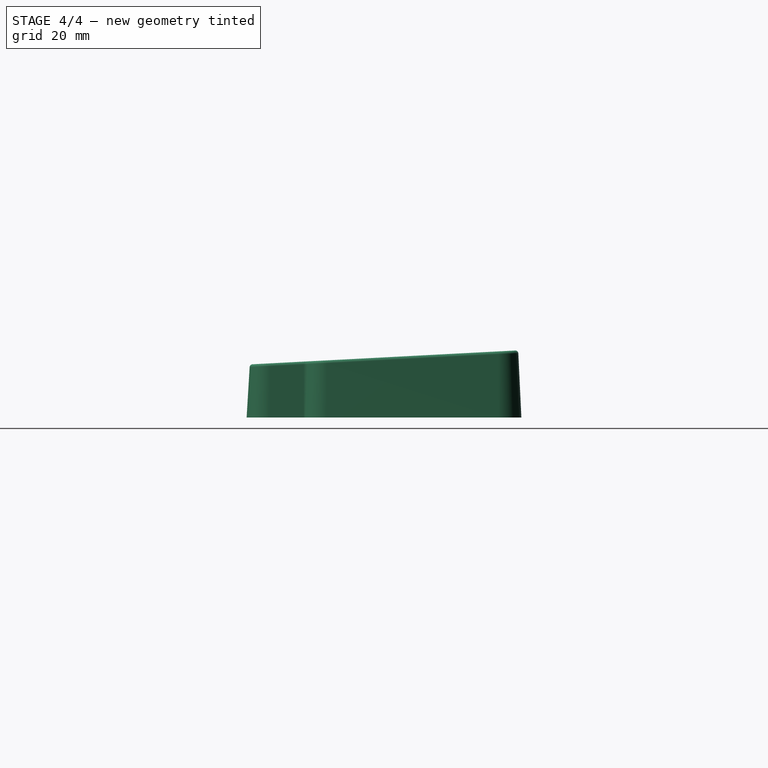
[diagram: stage 4 of 4 — right view after this stage's code; geometry added in this stage tinted green]
FEATURE [PartDesign::Fillet] Fillet
  Base = -> Pocket003 [Edge204,Edge251,Edge75,Edge60,Edge61,Edge62,Edge63,Edge181,Edge64,Edge131,Edge130,Edge129,Edge128,Edge127,Edge59,Edge126,Edge58,Edge57,Edge56,Face53]
  BaseFeature = -> Pocket003
  Radius = 1
  SupportTransform = false
  UseAllEdges = false
FEATURE [PartDesign::Fillet] Fillet001
  Base = -> Fillet [Face54,Face53,Face56,Face55,Edge314,Edge310,Edge308,Edge312]
  BaseFeature = -> Fillet
  Radius = 0.5
  SupportTransform = false
  UseAllEdges = false
FEATURE [PartDesign::Body] Body
  Group = -> [Sketch,Sketch001,AdditiveLoft,Sketch002,Pocket,Sketch003,Pocket001,Sketch004,Pocket002,Sketch005,Hole,Chamfer,Sketch006,Pocket003,Fillet,Fillet001]
  Origin = -> Origin
  Tip = -> Fillet001
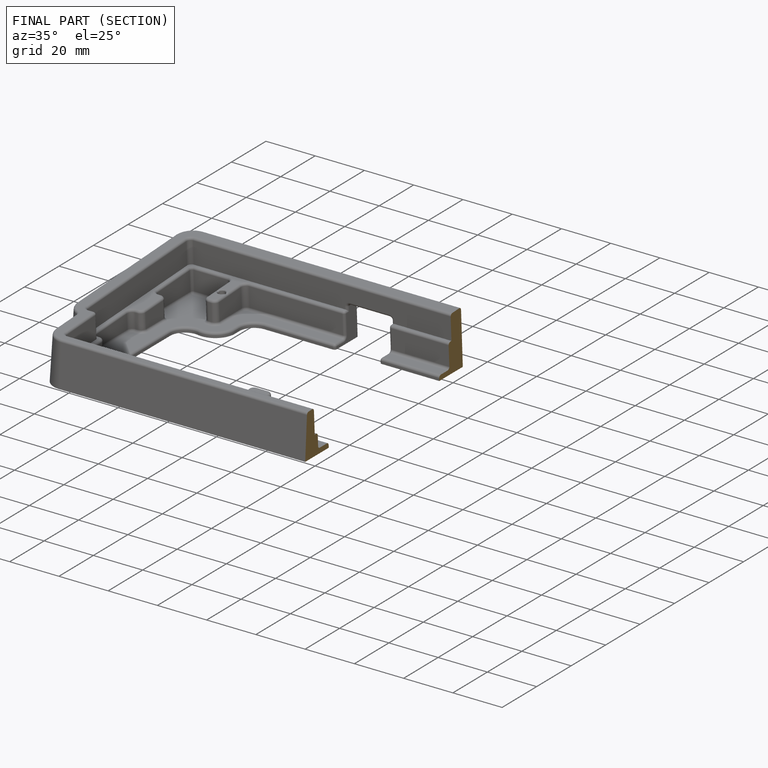
[diagram: finished part — half-section view (interior)]
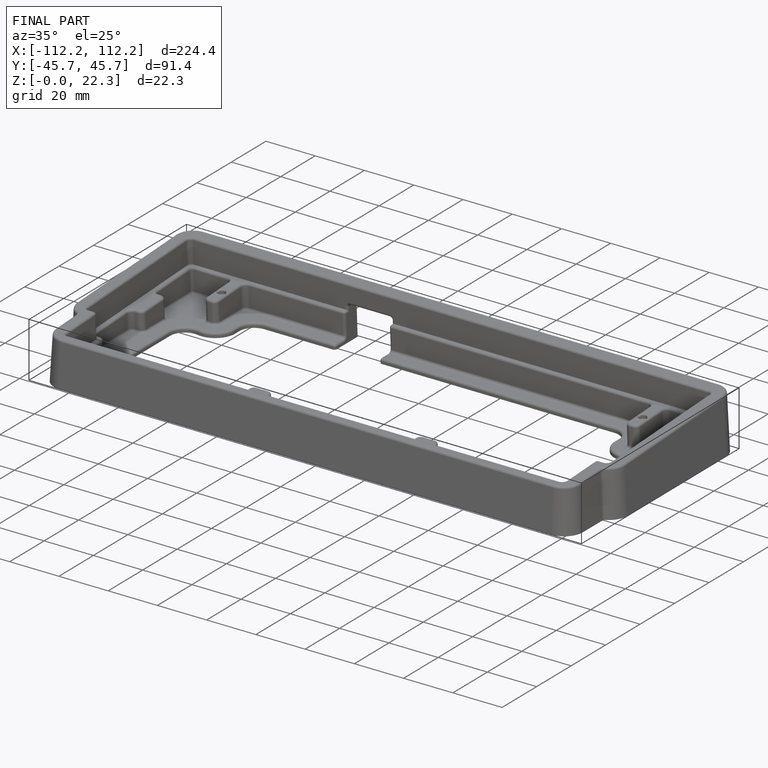
[diagram: finished part — iso view with bounding-box wireframe]
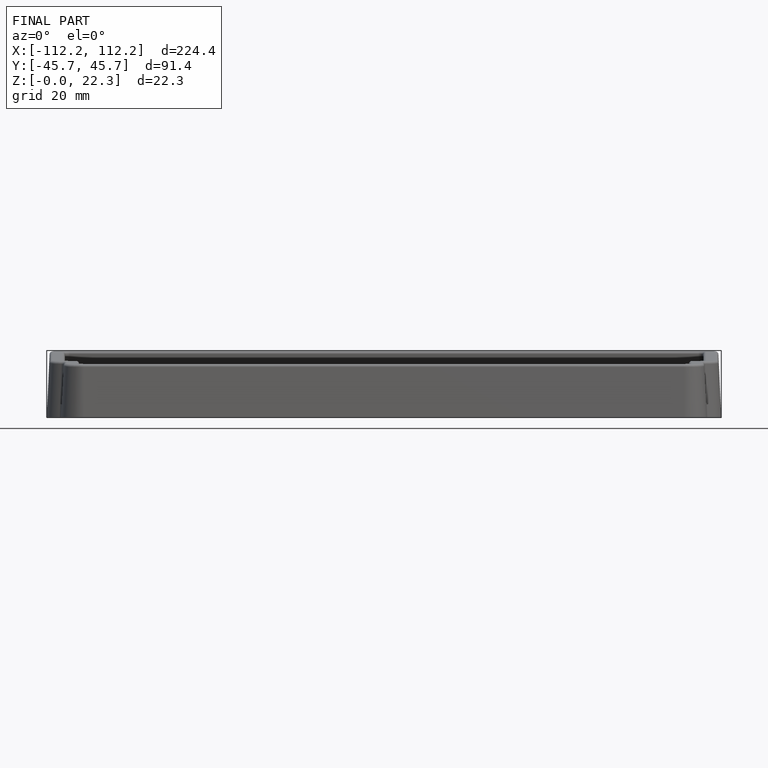
[diagram: finished part — front view with bounding-box wireframe]
